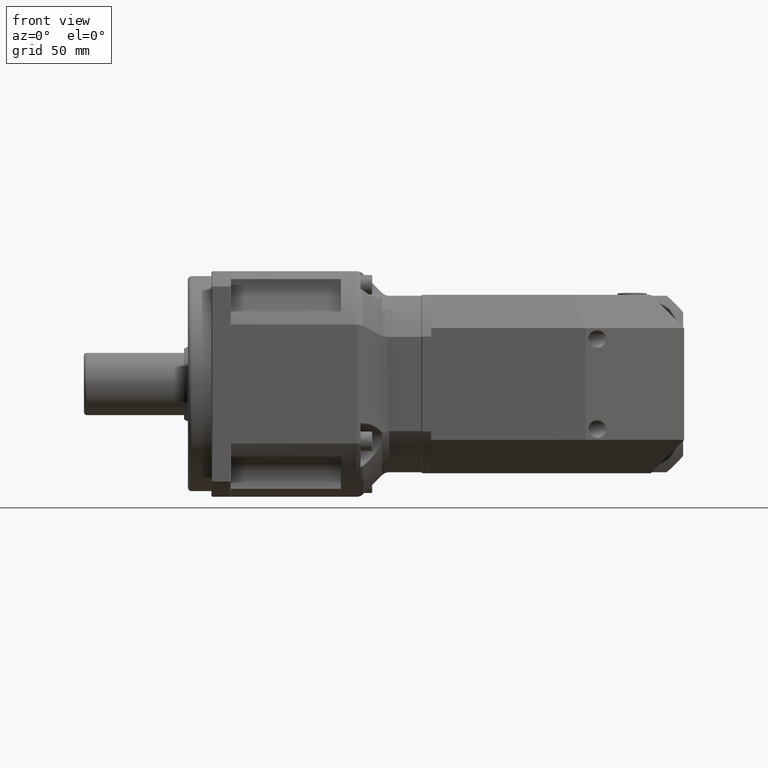
[diagram: clean part render]
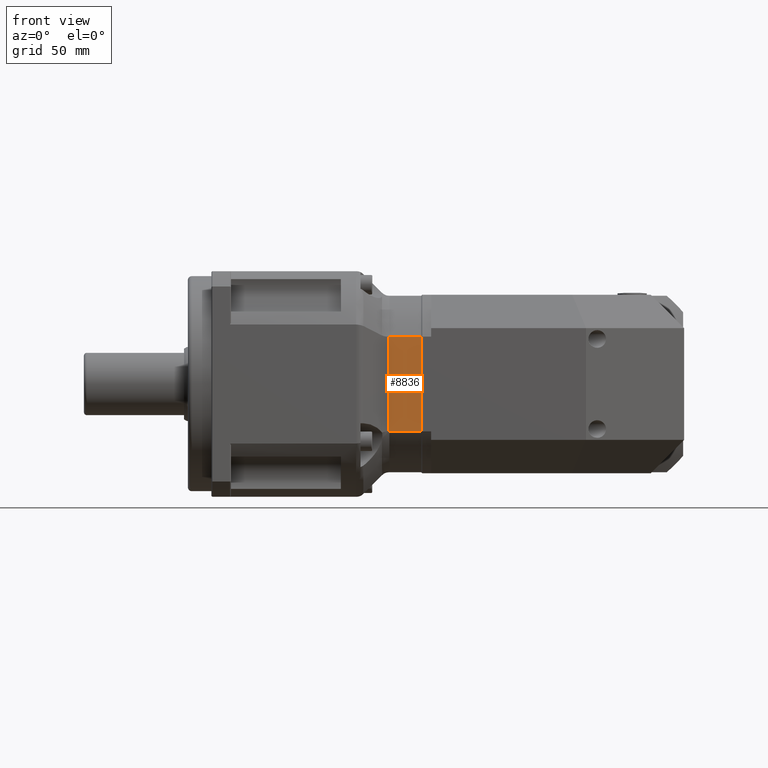
[diagram: same view with one face highlighted and labeled with its STEP entity id]
A machine part, front view. The second image highlights one B-rep face of the part: STEP entity #8836.
In plain terms, the highlighted planar face has unit normal (0, -1, -0).
Its self-contained STEP definition (entity closure, byte-faithful):
#132=B_SPLINE_CURVE_WITH_KNOTS('',3,(#14873,#14874,#14875,#14876),
 .UNSPECIFIED.,.F.,.F.,(4,4),(0.,0.0168473400029542),.UNSPECIFIED.);
#133=B_SPLINE_CURVE_WITH_KNOTS('',3,(#14883,#14884,#14885,#14886),
 .UNSPECIFIED.,.F.,.F.,(4,4),(0.600947864862237,0.622177712238811),
 .UNSPECIFIED.);
#507=LINE('',#14871,#970);
#508=LINE('',#14878,#971);
#509=LINE('',#14880,#972);
#510=LINE('',#14882,#973);
#970=VECTOR('',#11459,48.0119333642065);
#971=VECTOR('',#11460,16.2613812416727);
#972=VECTOR('',#11461,48.0000000000001);
#973=VECTOR('',#11462,16.2613812416727);
#2478=FACE_OUTER_BOUND('',#3202,.T.);
#3202=EDGE_LOOP('',(#7112,#7113,#7114,#7115,#7116,#7117));
#4444=VERTEX_POINT('',#14869);
#4445=VERTEX_POINT('',#14870);
#4446=VERTEX_POINT('',#14872);
#4447=VERTEX_POINT('',#14877);
#4448=VERTEX_POINT('',#14879);
#4449=VERTEX_POINT('',#14881);
#5422=EDGE_CURVE('',#4444,#4445,#507,.F.);
#5423=EDGE_CURVE('',#4446,#4444,#132,.T.);
#5424=EDGE_CURVE('',#4446,#4447,#508,.T.);
#5425=EDGE_CURVE('',#4448,#4447,#509,.T.);
#5426=EDGE_CURVE('',#4448,#4449,#510,.T.);
#5427=EDGE_CURVE('',#4445,#4449,#133,.T.);
#7112=ORIENTED_EDGE('',*,*,#5422,.F.);
#7113=ORIENTED_EDGE('',*,*,#5423,.F.);
#7114=ORIENTED_EDGE('',*,*,#5424,.T.);
#7115=ORIENTED_EDGE('',*,*,#5425,.F.);
#7116=ORIENTED_EDGE('',*,*,#5426,.T.);
#7117=ORIENTED_EDGE('',*,*,#5427,.F.);
#8377=PLANE('',#9703);
#8836=ADVANCED_FACE('',(#2478),#8377,.T.);
#9703=AXIS2_PLACEMENT_3D('',#14868,#11457,#11458);
#11457=DIRECTION('center_axis',(7.30465753510197E-16,-1.,-9.00996098717065E-16));
#11458=DIRECTION('ref_axis',(0.,-8.88178419700125E-16,1.));
#11459=DIRECTION('',(3.18840554337953E-16,9.00996098717065E-16,-1.));
#11460=DIRECTION('',(1.,7.30465753510197E-16,-7.28688222839997E-17));
#11461=DIRECTION('',(-7.28688222840004E-17,9.00996098717064E-16,-1.));
#11462=DIRECTION('',(-1.,-7.30465753510197E-16,7.28688222839997E-17));
#14868=CARTESIAN_POINT('Origin',(-12.3145634856385,-8.93917799761845,33.375721489125));
#14869=CARTESIAN_POINT('',(-28.7434956737418,-8.93917799761848,54.3697548070228));
#14870=CARTESIAN_POINT('',(-28.7434956737731,-8.93917799761852,102.381688171229));
#14871=CARTESIAN_POINT('',(-28.743495673773,-8.93917799761847,40.7202769228973));
#14872=CARTESIAN_POINT('',(-28.5759447273112,-8.93917799761848,54.3757214891249));
#14873=CARTESIAN_POINT('Ctrl Pts',(-28.5759447273112,-8.9391778943073,54.3757215629374));
#14874=CARTESIAN_POINT('Ctrl Pts',(-28.6320995634155,-8.93917798761062,
54.375721738453));
#14875=CARTESIAN_POINT('Ctrl Pts',(-28.687938053363,-8.93922411974936,54.3736877917004));
#14876=CARTESIAN_POINT('Ctrl Pts',(-28.7434449071686,-8.93930349349283,
54.3696886217771));
#14877=CARTESIAN_POINT('',(-12.3145634856385,-8.93917799761847,54.3757214891249));
#14878=CARTESIAN_POINT('',(-12.3145634856385,-8.93917799761847,54.3757214891249));
#14879=CARTESIAN_POINT('',(-12.3145634856385,-8.93917799761851,102.375721489125));
#14880=CARTESIAN_POINT('',(-12.3145634856385,-8.93917799761853,123.375721489125));
#14881=CARTESIAN_POINT('',(-28.5759447273112,-8.93917799761851,102.375721489125));
#14882=CARTESIAN_POINT('',(-12.3145634856385,-8.93917799761851,102.375721489125));
#14883=CARTESIAN_POINT('Ctrl Pts',(-28.7434449072007,-8.93930356799154,
102.381754428339));
#14884=CARTESIAN_POINT('Ctrl Pts',(-28.6878286050622,-8.93922373484086,
102.377747904778));
#14885=CARTESIAN_POINT('Ctrl Pts',(-28.6319908620053,-8.93917804352203,
102.375721295953));
#14886=CARTESIAN_POINT('Ctrl Pts',(-28.5759447273112,-8.93917794990322,
102.375721472027));